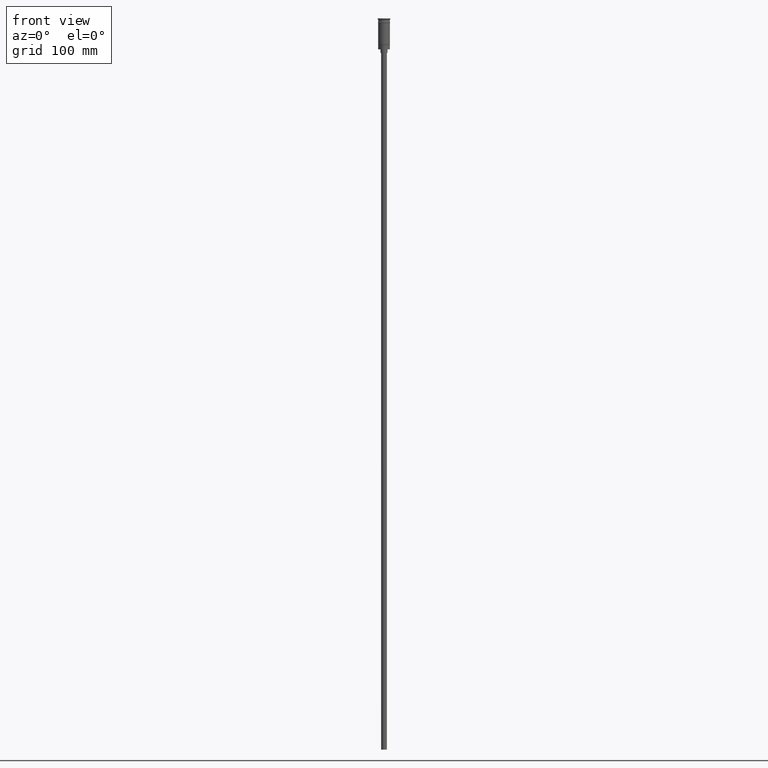
[diagram: clean part render]
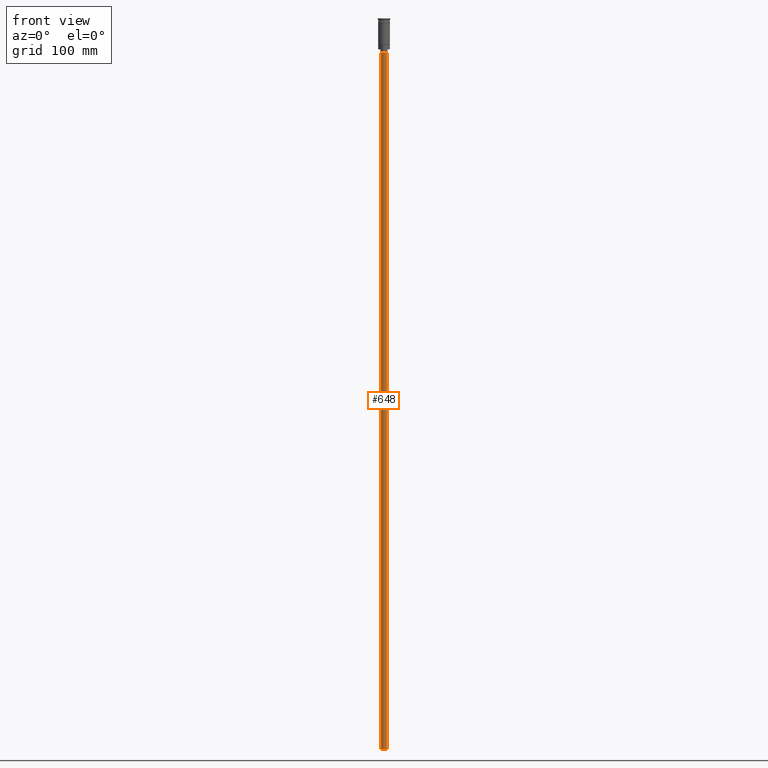
[diagram: same view with one face highlighted and labeled with its STEP entity id]
A machine part, front view. The second image highlights one B-rep face of the part: STEP entity #648.
In plain terms, the highlighted cylindrical surface (edge-blend (fillet) strip) has radius 2.5 mm, axis along (-0, -0, 1).
Its self-contained STEP definition (entity closure, byte-faithful):
#58 = CIRCLE ( 'NONE', #266, 2.500000000000000000 ) ;
#105 = DIRECTION ( 'NONE',  ( -0.000000000000000000, -0.000000000000000000, 1.000000000000000000 ) ) ;
#137 = CARTESIAN_POINT ( 'NONE',  ( 0.000000000000000000, 0.000000000000000000, -29.50000000000000000 ) ) ;
#199 = ORIENTED_EDGE ( 'NONE', *, *, #574, .F. ) ;
#227 = VERTEX_POINT ( 'NONE', #1146 ) ;
#233 = EDGE_LOOP ( 'NONE', ( #244, #199, #1189, #795 ) ) ;
#244 = ORIENTED_EDGE ( 'NONE', *, *, #1373, .F. ) ;
#266 = AXIS2_PLACEMENT_3D ( 'NONE', #1594, #1110, #1339 ) ;
#388 = DIRECTION ( 'NONE',  ( -1.000000000000000000, 0.000000000000000000, 0.000000000000000000 ) ) ;
#443 = VERTEX_POINT ( 'NONE', #495 ) ;
#451 = CARTESIAN_POINT ( 'NONE',  ( -2.500000000000000000, 3.061616997868383141E-16, -626.5000000000000000 ) ) ;
#465 = CARTESIAN_POINT ( 'NONE',  ( 0.000000000000000000, 0.000000000000000000, -626.5000000000000000 ) ) ;
#495 = CARTESIAN_POINT ( 'NONE',  ( -2.500000000000000000, 3.061616997868383141E-16, -626.5000000000000000 ) ) ;
#523 = VECTOR ( 'NONE', #105, 1000.000000000000000 ) ;
#547 = EDGE_CURVE ( 'NONE', #1537, #227, #911, .T. ) ;
#574 = EDGE_CURVE ( 'NONE', #1467, #443, #58, .T. ) ;
#575 = CYLINDRICAL_SURFACE ( 'NONE', #1459, 2.500000000000000000 ) ;
#618 = CARTESIAN_POINT ( 'NONE',  ( 2.500000000000000000, 0.000000000000000000, -626.5000000000000000 ) ) ;
#648 = ADVANCED_FACE ( 'NONE', ( #1564 ), #575, .T. ) ;
#795 = ORIENTED_EDGE ( 'NONE', *, *, #547, .T. ) ;
#836 = DIRECTION ( 'NONE',  ( 1.000000000000000000, 0.000000000000000000, 0.000000000000000000 ) ) ;
#908 = CARTESIAN_POINT ( 'NONE',  ( 2.500000000000000000, 0.000000000000000000, -29.50000000000000000 ) ) ;
#911 = CIRCLE ( 'NONE', #1524, 2.500000000000000000 ) ;
#931 = LINE ( 'NONE', #1418, #1082 ) ;
#1082 = VECTOR ( 'NONE', #1426, 1000.000000000000000 ) ;
#1110 = DIRECTION ( 'NONE',  ( 0.000000000000000000, 0.000000000000000000, -1.000000000000000000 ) ) ;
#1146 = CARTESIAN_POINT ( 'NONE',  ( -2.500000000000000000, 3.061616997868383141E-16, -29.50000000000000000 ) ) ;
#1189 = ORIENTED_EDGE ( 'NONE', *, *, #1588, .T. ) ;
#1339 = DIRECTION ( 'NONE',  ( -1.000000000000000000, 0.000000000000000000, 0.000000000000000000 ) ) ;
#1370 = DIRECTION ( 'NONE',  ( 0.000000000000000000, 0.000000000000000000, -1.000000000000000000 ) ) ;
#1373 = EDGE_CURVE ( 'NONE', #443, #227, #1559, .T. ) ;
#1418 = CARTESIAN_POINT ( 'NONE',  ( 2.500000000000000000, 0.000000000000000000, -626.5000000000000000 ) ) ;
#1426 = DIRECTION ( 'NONE',  ( -0.000000000000000000, -0.000000000000000000, 1.000000000000000000 ) ) ;
#1459 = AXIS2_PLACEMENT_3D ( 'NONE', #465, #1531, #836 ) ;
#1467 = VERTEX_POINT ( 'NONE', #618 ) ;
#1524 = AXIS2_PLACEMENT_3D ( 'NONE', #137, #1370, #388 ) ;
#1531 = DIRECTION ( 'NONE',  ( -0.000000000000000000, -0.000000000000000000, 1.000000000000000000 ) ) ;
#1537 = VERTEX_POINT ( 'NONE', #908 ) ;
#1559 = LINE ( 'NONE', #451, #523 ) ;
#1564 = FACE_OUTER_BOUND ( 'NONE', #233, .T. ) ;
#1588 = EDGE_CURVE ( 'NONE', #1467, #1537, #931, .T. ) ;
#1594 = CARTESIAN_POINT ( 'NONE',  ( 0.000000000000000000, 0.000000000000000000, -626.5000000000000000 ) ) ;